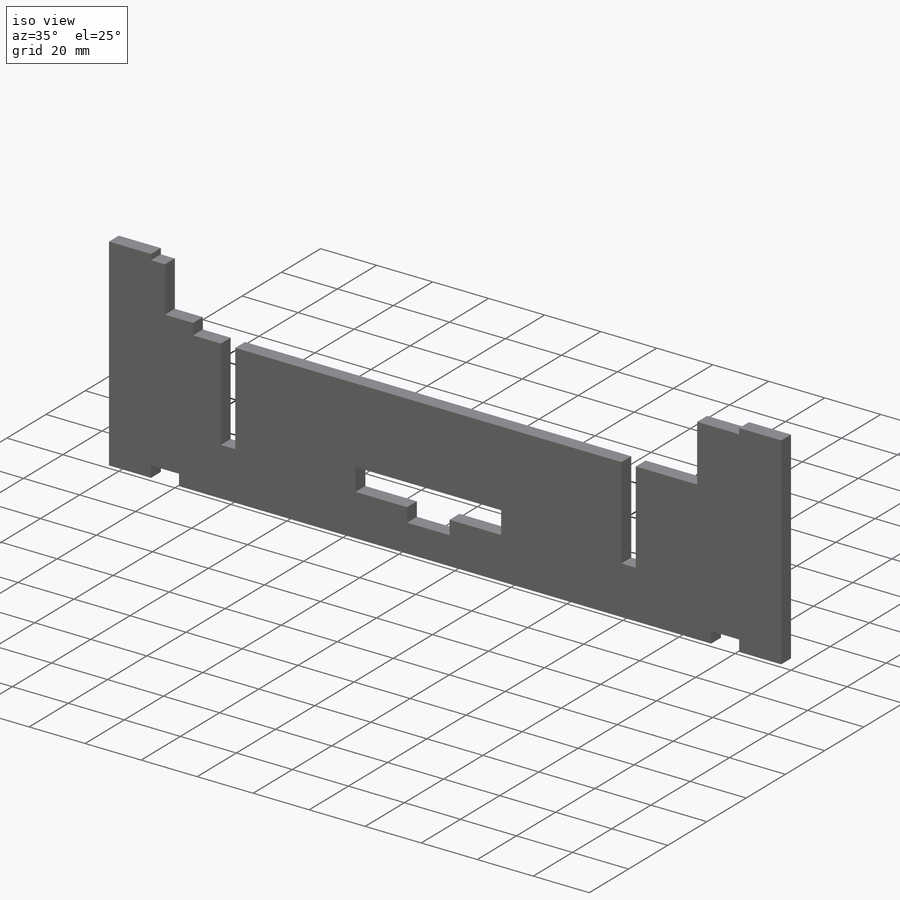
[diagram: iso view]
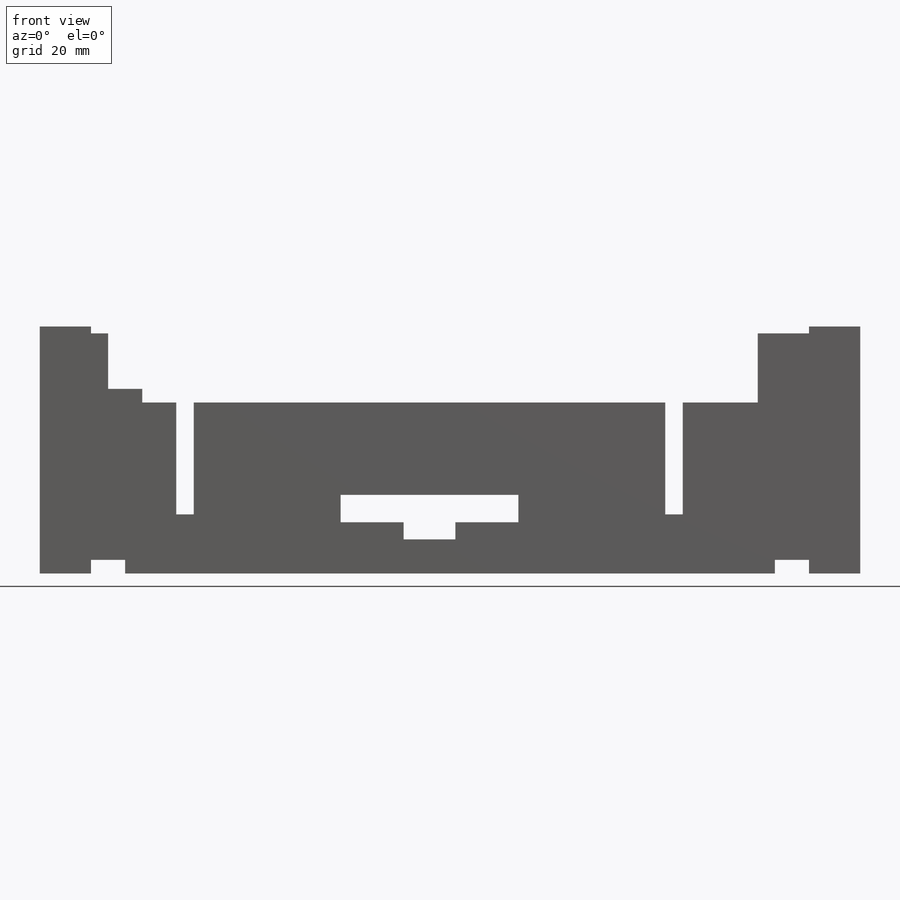
[diagram: front view]
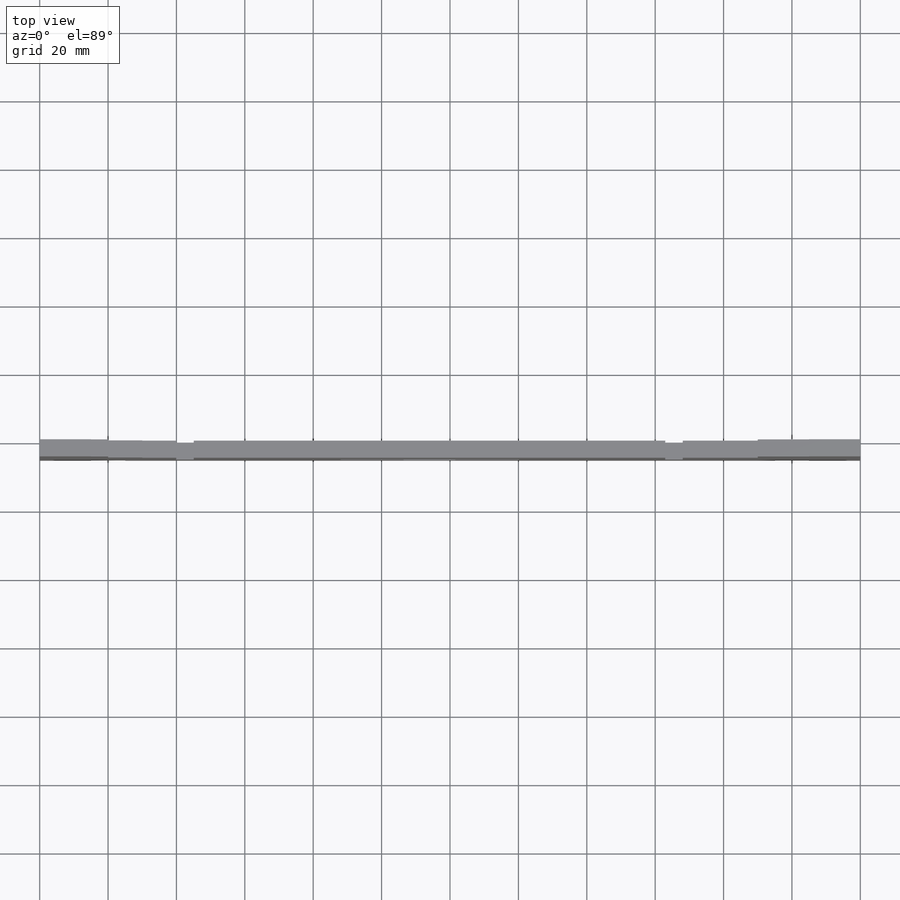
[diagram: top view]
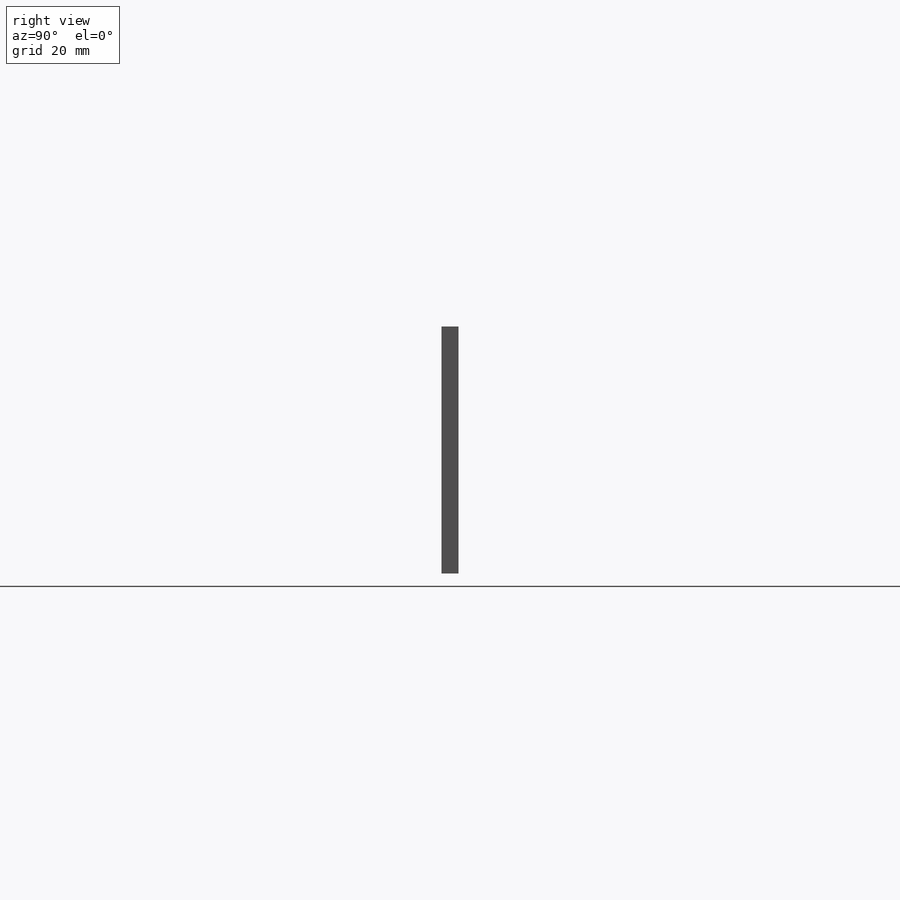
[diagram: right view]
SOLIDWORKS PART (.sldprt)
format: sldprt  version: not decoded by parser v0  size: 466,432 bytes
history: native  units: mm
features: sketch x5, cut_extrude x4, material x1, extrude x1, plane x1 (+11 scaffold rows collapsed)
feature tree (23):
  scaffold x11  (default folders/planes/origin — collapsed)
  material  "Acrylic (Medium-high impact)"
  sketch  "Sketch1"  dims[c1.D1=15.0mm c1.D2=30.0mm c1.D3=200.0mm c1.D4=50.0mm c1.D5=15.0mm c1.D6=5.0mm c1.D7=15.0mm c1.D8=45.0mm c2.D4=50.0mm c2.D5=7.5mm c3.D4=~9.013878mm c3.D1=20.0mm c3.D2=30.0mm c4.D4=15.0mm c4.D5=15.0mm c5.D4=15.0mm c5.D5=2.0mm c5.D6=17.0mm c5.D7=50.0mm c5.D3=240.0mm c6.D6=17.0mm c6.D7=50.0mm c6.D8=0.0mm c6.D9=4.0mm c7.D8=10.0mm c7.D6=22.25mm]
  extrude  "Boss-Extrude1"  Depth=5mm
  plane  "Plane1"
  cut_extrude  "Cut-Extrude6"  [1 undecoded]
  sketch  "Sketch7"  dims[c1.D1=5.0mm c1.D2=40.0mm c1.D3=5.0mm c2.D1=~54.473603mm c2.D2=5.125mm c3.D1=32.7mm]
  cut_extrude  "Cut-Extrude7"  [1 undecoded]
  sketch  "Sketch8"  dims[c1.D1=5.0mm c1.D2=40.0mm c1.D3=5.0mm c2.D1=42.5mm c2.D2=5.125mm c3.D1=32.7mm]
  cut_extrude  "Cut-Extrude8"  [1 undecoded]
  sketch  "Sketch9"  dims[c1.D1=8.0mm c1.D2=~98.486801mm c1.D3=~86.513199mm c1.D4=15.0mm c1.D5=15.15mm c1.D6=5.0mm c2.D4=10.0mm c2.D7=52.0mm c2.D2=~125.986801mm c2.D3=0.0mm c2.D8=26.0mm c3.D2=~125.986801mm c3.D1=50.0mm]
  sketch  "Sketch10"  dims[D1=10.0mm D2=4.0mm D3=15.0mm]
  cut_extrude  "Cut-Extrude9"  [1 undecoded]
decode coverage: 6 of 10 modeling features carry decoded parameters
note: ~ marks probable driven/reference dimensions
note: 4 parameter values undecoded
summary: no parameter record found for 4 features
note: suppression state not decoded; provenance and decode notes live in map.json
